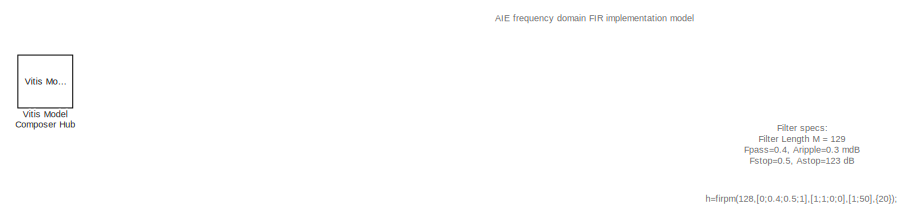
[diagram: root canvas - part 1/5, top left region]
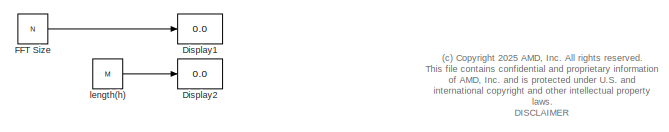
[diagram: root canvas - part 2/5, top right region]
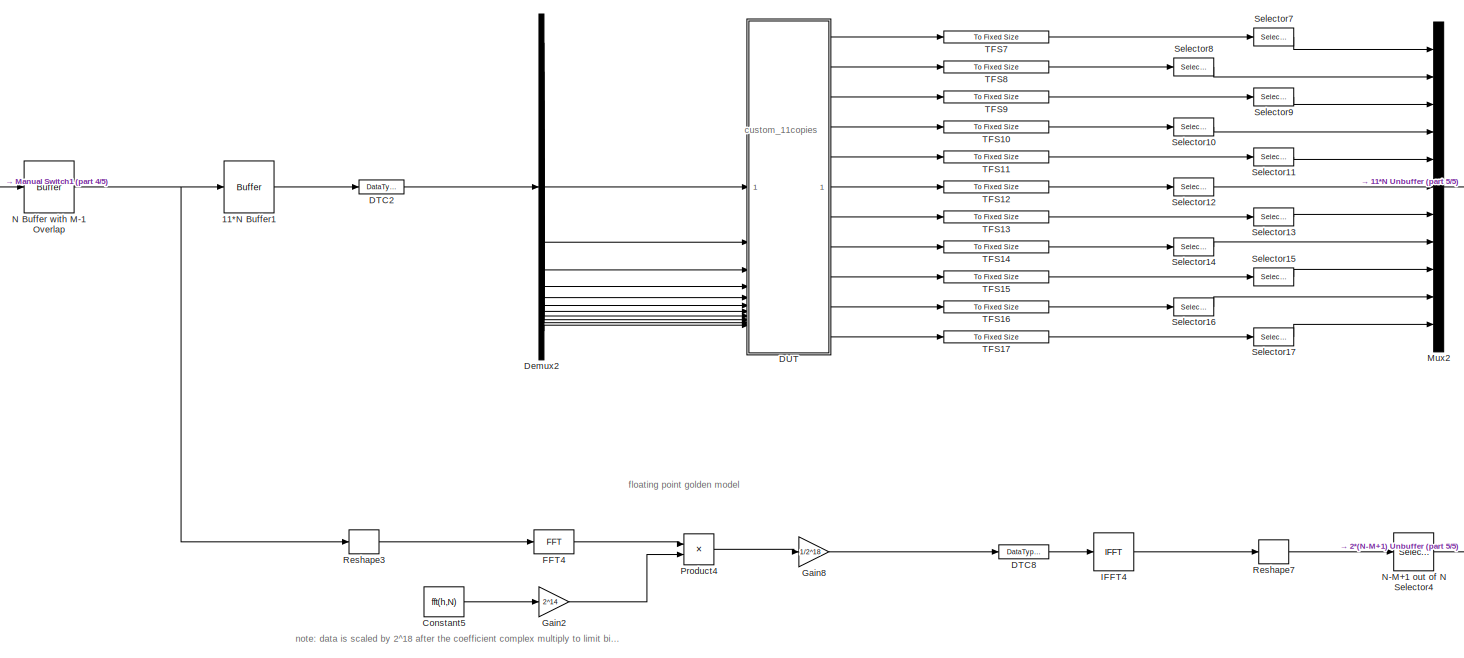
[diagram: root canvas - part 3/5, central region]
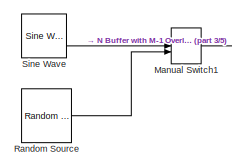
[diagram: root canvas - part 4/5, middle left region]
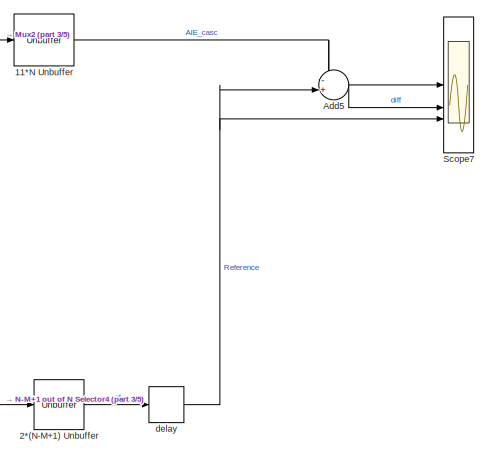
[diagram: root canvas - part 5/5, bottom right region]
MODEL slx_53d1c4419715
KIND model
CONFIG AbsTol = auto
CONFIG EnableMultiTasking = off
CONFIG FixedStep = auto
CONFIG InitFcn = N=256;\nh=firpm(128,[0;0.4;0.5;1],[1;1;0;0],[1;50],{20});\nhc=fft(h,N);\nh_quant = int16(2^14*hc/max(hc));\nM=length(h);\n
CONFIG MaxStep = auto
CONFIG MinStep = auto
CONFIG RelTol = 1e-3
CONFIG SampleTimeConstraint = Unconstrained
CONFIG SolverName = VariableStepAuto
CONFIG StartTime = 0.0
CONFIG StopTime = 65536/10
BLOCK [Buffer] 11*N Buffer1
  N = 11*N
  OutputFrames = off
BLOCK [Unbuffer] 11*N Unbuffer
BLOCK [Unbuffer] 2*(N-M+1) Unbuffer
BLOCK [Sum] Add5
  Inputs = -+|
BLOCK [Constant] Constant5
  SampleTime = 2*(N-M+1)
  Value = fft(h,N)
BLOCK [DataTypeConversion] DTC2
  OutDataTypeStr = int32
  RndMeth = Floor
  SaturateOnIntegerOverflow = off
BLOCK [DataTypeConversion] DTC8
  OutDataTypeStr = single
  RndMeth = Floor
  SaturateOnIntegerOverflow = off
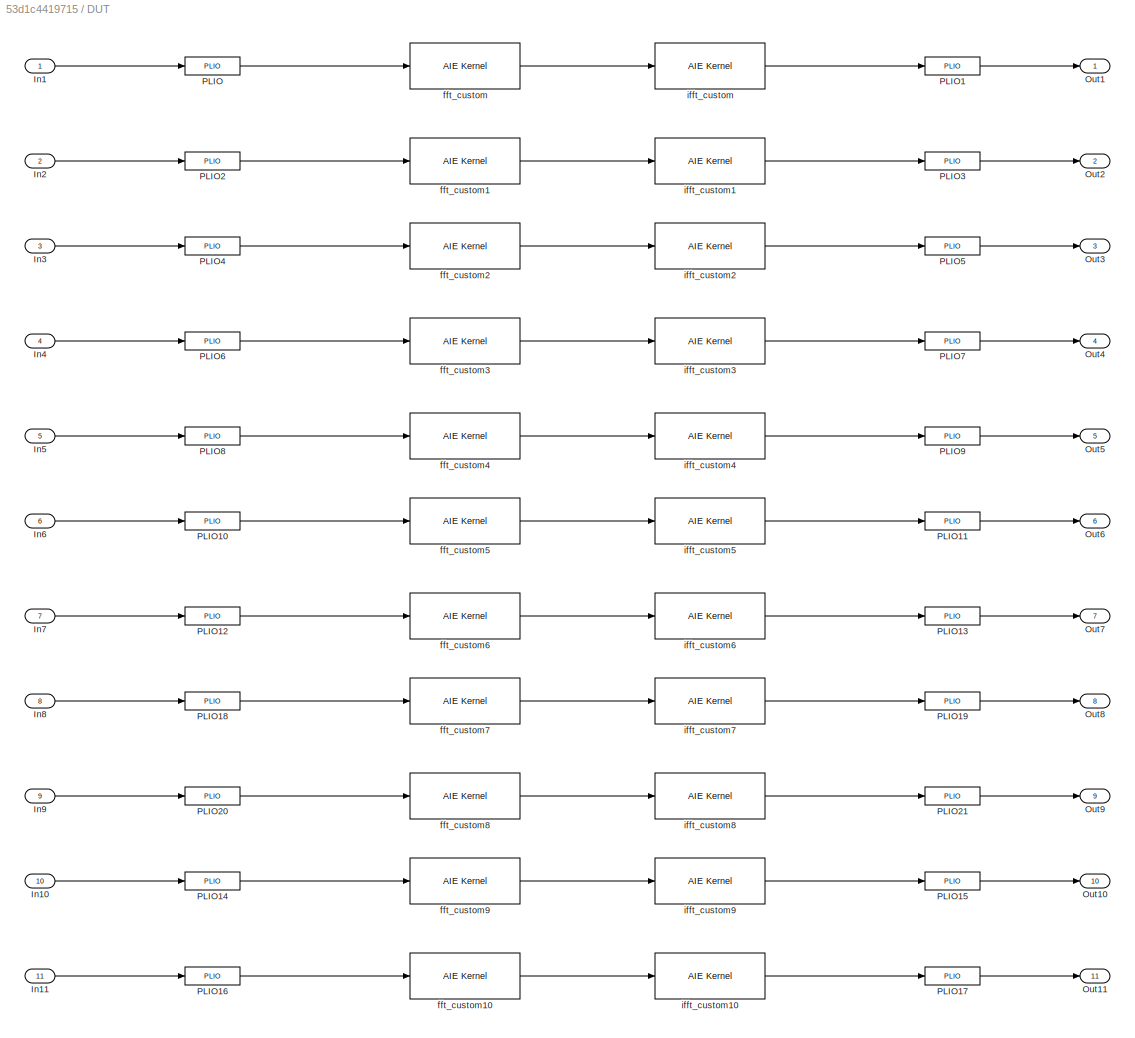
BLOCK [SubSystem] DUT
BLOCK [Inport] DUT/In1
BLOCK [Inport] DUT/In10
  Port = 10
BLOCK [Inport] DUT/In11
  Port = 11
BLOCK [Inport] DUT/In2
  Port = 2
BLOCK [Inport] DUT/In3
  Port = 3
BLOCK [Inport] DUT/In4
  Port = 4
BLOCK [Inport] DUT/In5
  Port = 5
BLOCK [Inport] DUT/In6
  Port = 6
BLOCK [Inport] DUT/In7
  Port = 7
BLOCK [Inport] DUT/In8
  Port = 8
BLOCK [Inport] DUT/In9
  Port = 9
BLOCK [Outport] DUT/Out1
BLOCK [Outport] DUT/Out10
  Port = 10
BLOCK [Outport] DUT/Out11
  Port = 11
BLOCK [Outport] DUT/Out2
  Port = 2
BLOCK [Outport] DUT/Out3
  Port = 3
BLOCK [Outport] DUT/Out4
  Port = 4
BLOCK [Outport] DUT/Out5
  Port = 5
BLOCK [Outport] DUT/Out6
  Port = 6
BLOCK [Outport] DUT/Out7
  Port = 7
BLOCK [Outport] DUT/Out8
  Port = 8
BLOCK [Outport] DUT/Out9
  Port = 9
BLOCK [Reference] DUT/PLIO  REF=aieBasic/PLIO
  SourceBlock = aieBasic/PLIO
  SourceType = PLIO
BLOCK [Reference] DUT/PLIO1  REF=aieBasic/PLIO
  SourceBlock = aieBasic/PLIO
  SourceType = PLIO
BLOCK [Reference] DUT/PLIO10  REF=aieBasic/PLIO
  SourceBlock = aieBasic/PLIO
  SourceType = PLIO
BLOCK [Reference] DUT/PLIO11  REF=aieBasic/PLIO
  SourceBlock = aieBasic/PLIO
  SourceType = PLIO
BLOCK [Reference] DUT/PLIO12  REF=aieBasic/PLIO
  SourceBlock = aieBasic/PLIO
  SourceType = PLIO
BLOCK [Reference] DUT/PLIO13  REF=aieBasic/PLIO
  SourceBlock = aieBasic/PLIO
  SourceType = PLIO
BLOCK [Reference] DUT/PLIO14  REF=aieBasic/PLIO
  SourceBlock = aieBasic/PLIO
  SourceType = PLIO
BLOCK [Reference] DUT/PLIO15  REF=aieBasic/PLIO
  SourceBlock = aieBasic/PLIO
  SourceType = PLIO
BLOCK [Reference] DUT/PLIO16  REF=aieBasic/PLIO
  SourceBlock = aieBasic/PLIO
  SourceType = PLIO
BLOCK [Reference] DUT/PLIO17  REF=aieBasic/PLIO
  SourceBlock = aieBasic/PLIO
  SourceType = PLIO
BLOCK [Reference] DUT/PLIO18  REF=aieBasic/PLIO
  SourceBlock = aieBasic/PLIO
  SourceType = PLIO
BLOCK [Reference] DUT/PLIO19  REF=aieBasic/PLIO
  SourceBlock = aieBasic/PLIO
  SourceType = PLIO
BLOCK [Reference] DUT/PLIO2  REF=aieBasic/PLIO
  SourceBlock = aieBasic/PLIO
  SourceType = PLIO
BLOCK [Reference] DUT/PLIO20  REF=aieBasic/PLIO
  SourceBlock = aieBasic/PLIO
  SourceType = PLIO
BLOCK [Reference] DUT/PLIO21  REF=aieBasic/PLIO
  SourceBlock = aieBasic/PLIO
  SourceType = PLIO
BLOCK [Reference] DUT/PLIO3  REF=aieBasic/PLIO
  SourceBlock = aieBasic/PLIO
  SourceType = PLIO
BLOCK [Reference] DUT/PLIO4  REF=aieBasic/PLIO
  SourceBlock = aieBasic/PLIO
  SourceType = PLIO
BLOCK [Reference] DUT/PLIO5  REF=aieBasic/PLIO
  SourceBlock = aieBasic/PLIO
  SourceType = PLIO
BLOCK [Reference] DUT/PLIO6  REF=aieBasic/PLIO
  SourceBlock = aieBasic/PLIO
  SourceType = PLIO
BLOCK [Reference] DUT/PLIO7  REF=aieBasic/PLIO
  SourceBlock = aieBasic/PLIO
  SourceType = PLIO
BLOCK [Reference] DUT/PLIO8  REF=aieBasic/PLIO
  SourceBlock = aieBasic/PLIO
  SourceType = PLIO
BLOCK [Reference] DUT/PLIO9  REF=aieBasic/PLIO
  SourceBlock = aieBasic/PLIO
  SourceType = PLIO
BLOCK [Reference] DUT/fft_custom  REF=aieBasic/AIE Kernel
  SourceBlock = aieBasic/AIE Kernel
  SourceType = AIE Kernel Function
BLOCK [Reference] DUT/fft_custom1  REF=aieBasic/AIE Kernel
  SourceBlock = aieBasic/AIE Kernel
  SourceType = AIE Kernel Function
BLOCK [Reference] DUT/fft_custom10  REF=aieBasic/AIE Kernel
  SourceBlock = aieBasic/AIE Kernel
  SourceType = AIE Kernel Function
BLOCK [Reference] DUT/fft_custom2  REF=aieBasic/AIE Kernel
  SourceBlock = aieBasic/AIE Kernel
  SourceType = AIE Kernel Function
BLOCK [Reference] DUT/fft_custom3  REF=aieBasic/AIE Kernel
  SourceBlock = aieBasic/AIE Kernel
  SourceType = AIE Kernel Function
BLOCK [Reference] DUT/fft_custom4  REF=aieBasic/AIE Kernel
  SourceBlock = aieBasic/AIE Kernel
  SourceType = AIE Kernel Function
BLOCK [Reference] DUT/fft_custom5  REF=aieBasic/AIE Kernel
  SourceBlock = aieBasic/AIE Kernel
  SourceType = AIE Kernel Function
BLOCK [Reference] DUT/fft_custom6  REF=aieBasic/AIE Kernel
  SourceBlock = aieBasic/AIE Kernel
  SourceType = AIE Kernel Function
BLOCK [Reference] DUT/fft_custom7  REF=aieBasic/AIE Kernel
  SourceBlock = aieBasic/AIE Kernel
  SourceType = AIE Kernel Function
BLOCK [Reference] DUT/fft_custom8  REF=aieBasic/AIE Kernel
  SourceBlock = aieBasic/AIE Kernel
  SourceType = AIE Kernel Function
BLOCK [Reference] DUT/fft_custom9  REF=aieBasic/AIE Kernel
  SourceBlock = aieBasic/AIE Kernel
  SourceType = AIE Kernel Function
BLOCK [Reference] DUT/ifft_custom  REF=aieBasic/AIE Kernel
  SourceBlock = aieBasic/AIE Kernel
  SourceType = AIE Kernel Function
BLOCK [Reference] DUT/ifft_custom1  REF=aieBasic/AIE Kernel
  SourceBlock = aieBasic/AIE Kernel
  SourceType = AIE Kernel Function
BLOCK [Reference] DUT/ifft_custom10  REF=aieBasic/AIE Kernel
  SourceBlock = aieBasic/AIE Kernel
  SourceType = AIE Kernel Function
BLOCK [Reference] DUT/ifft_custom2  REF=aieBasic/AIE Kernel
  SourceBlock = aieBasic/AIE Kernel
  SourceType = AIE Kernel Function
BLOCK [Reference] DUT/ifft_custom3  REF=aieBasic/AIE Kernel
  SourceBlock = aieBasic/AIE Kernel
  SourceType = AIE Kernel Function
BLOCK [Reference] DUT/ifft_custom4  REF=aieBasic/AIE Kernel
  SourceBlock = aieBasic/AIE Kernel
  SourceType = AIE Kernel Function
BLOCK [Reference] DUT/ifft_custom5  REF=aieBasic/AIE Kernel
  SourceBlock = aieBasic/AIE Kernel
  SourceType = AIE Kernel Function
BLOCK [Reference] DUT/ifft_custom6  REF=aieBasic/AIE Kernel
  SourceBlock = aieBasic/AIE Kernel
  SourceType = AIE Kernel Function
BLOCK [Reference] DUT/ifft_custom7  REF=aieBasic/AIE Kernel
  SourceBlock = aieBasic/AIE Kernel
  SourceType = AIE Kernel Function
BLOCK [Reference] DUT/ifft_custom8  REF=aieBasic/AIE Kernel
  SourceBlock = aieBasic/AIE Kernel
  SourceType = AIE Kernel Function
BLOCK [Reference] DUT/ifft_custom9  REF=aieBasic/AIE Kernel
  SourceBlock = aieBasic/AIE Kernel
  SourceType = AIE Kernel Function
BLOCK [Demux] Demux2
  Outputs = 11
BLOCK [Display] Display1
  Decimation = 1
BLOCK [Display] Display2
  Decimation = 1
BLOCK [Constant] FFT Size
  Value = N
BLOCK [Reference] FFT4  REF=dspxfrm3/FFT
  SourceBlock = dspxfrm3/FFT
  SourceType = FFT
BLOCK [Gain] Gain2
  Gain = 2^14
  OutDataTypeStr = single
BLOCK [Gain] Gain8
  Gain = 1/2^18
  OutDataTypeStr = single
BLOCK [Reference] IFFT4  REF=dspxfrm3/IFFT
  SourceBlock = dspxfrm3/IFFT
  SourceType = IFFT
BLOCK [ManualSwitch] Manual Switch1
BLOCK [Mux] Mux2
  DisplayOption = bar
  Inputs = 11
BLOCK [Buffer] N Buffer with M-1 Overlap
  N = N
  OutputFrames = off
  V = M-1
BLOCK [Selector] N-M+1 out of N Selector4
  IndexOptions = Index vector (dialog)
  Indices = [length(h):N]
  InputPortWidth = N
  NameLocation = left
  OutputSizes = 1
BLOCK [Product] Product4
BLOCK [Reference] Random Source  REF=dspsrcs4/Random
Source
  SourceBlock = dspsrcs4/Random\nSource
  SourceType = dsp.simulink.RandomSource
BLOCK [Reshape] Reshape3
BLOCK [Reshape] Reshape7
BLOCK [Scope] Scope7
  Floating = off
  NumInputPorts = 3
  ScopeSpecificationString = Simulink.scopes.TimeScopeBlockCfg('CurrentConfiguration', extmgr.ConfigurationSet(extmgr.Configuration('Core','General UI',true,'DisplayFullSourceName',false,'ShowMainToolbar',true,'FigureColor',[0.129411764705882 0.129411764705882 0.129411764705882]),extmgr.Configuration('Sources','WiredSimulink',true,'DataLogging',false,'DataLoggingVariableName','ScopeData1','DataLoggingLimitDataPoints',false,'D...<+4640ch>
BLOCK [Selector] Selector10
  IndexOptions = Index vector (dialog)
  Indices = [length(h):N]
  InputPortWidth = N
  OutputSizes = 1
BLOCK [Selector] Selector11
  IndexOptions = Index vector (dialog)
  Indices = [length(h):N]
  InputPortWidth = N
  OutputSizes = 1
BLOCK [Selector] Selector12
  IndexOptions = Index vector (dialog)
  Indices = [length(h):N]
  InputPortWidth = N
  OutputSizes = 1
BLOCK [Selector] Selector13
  IndexOptions = Index vector (dialog)
  Indices = [length(h):N]
  InputPortWidth = N
  OutputSizes = 1
BLOCK [Selector] Selector14
  IndexOptions = Index vector (dialog)
  Indices = [length(h):N]
  InputPortWidth = N
  OutputSizes = 1
BLOCK [Selector] Selector15
  IndexOptions = Index vector (dialog)
  Indices = [length(h):N]
  InputPortWidth = N
  OutputSizes = 1
BLOCK [Selector] Selector16
  IndexOptions = Index vector (dialog)
  Indices = [length(h):N]
  InputPortWidth = N
  OutputSizes = 1
BLOCK [Selector] Selector17
  IndexOptions = Index vector (dialog)
  Indices = [length(h):N]
  InputPortWidth = N
  OutputSizes = 1
BLOCK [Selector] Selector7
  IndexOptions = Index vector (dialog)
  Indices = [length(h):N]
  InputPortWidth = N
  OutputSizes = 1
BLOCK [Selector] Selector8
  IndexOptions = Index vector (dialog)
  Indices = [length(h):N]
  InputPortWidth = N
  OutputSizes = 1
BLOCK [Selector] Selector9
  IndexOptions = Index vector (dialog)
  Indices = [length(h):N]
  InputPortWidth = N
  OutputSizes = 1
BLOCK [Reference] Sine Wave  REF=dspsrcs4/Sine Wave
  SourceBlock = dspsrcs4/Sine Wave
  SourceType = Sine Wave
BLOCK [Reference] TFS10  REF=aieUtilities/To Fixed Size
  SourceBlock = aieUtilities/To Fixed Size
  SourceType = To Fixed Size
BLOCK [Reference] TFS11  REF=aieUtilities/To Fixed Size
  SourceBlock = aieUtilities/To Fixed Size
  SourceType = To Fixed Size
BLOCK [Reference] TFS12  REF=aieUtilities/To Fixed Size
  SourceBlock = aieUtilities/To Fixed Size
  SourceType = To Fixed Size
BLOCK [Reference] TFS13  REF=aieUtilities/To Fixed Size
  SourceBlock = aieUtilities/To Fixed Size
  SourceType = To Fixed Size
BLOCK [Reference] TFS14  REF=aieUtilities/To Fixed Size
  SourceBlock = aieUtilities/To Fixed Size
  SourceType = To Fixed Size
BLOCK [Reference] TFS15  REF=aieUtilities/To Fixed Size
  SourceBlock = aieUtilities/To Fixed Size
  SourceType = To Fixed Size
BLOCK [Reference] TFS16  REF=aieUtilities/To Fixed Size
  SourceBlock = aieUtilities/To Fixed Size
  SourceType = To Fixed Size
BLOCK [Reference] TFS17  REF=aieUtilities/To Fixed Size
  SourceBlock = aieUtilities/To Fixed Size
  SourceType = To Fixed Size
BLOCK [Reference] TFS7  REF=aieUtilities/To Fixed Size
  SourceBlock = aieUtilities/To Fixed Size
  SourceType = To Fixed Size
BLOCK [Reference] TFS8  REF=aieUtilities/To Fixed Size
  SourceBlock = aieUtilities/To Fixed Size
  SourceType = To Fixed Size
BLOCK [Reference] TFS9  REF=aieUtilities/To Fixed Size
  SourceBlock = aieUtilities/To Fixed Size
  SourceType = To Fixed Size
BLOCK [Reference] Vitis Model Composer Hub  REF=vmcUtilities/Vitis Model Composer Hub
  SourceBlock = vmcUtilities/Vitis Model Composer Hub
  SourceType = VMC Hub
  Tag = genX
  UserDataPersistent = on
BLOCK [Delay] delay
  DelayLength = 691*2+26
  InputPortMap = u0
BLOCK [Constant] length(h)
  Value = M
ANNOTATION (root): (c) <copyright redacted>
ANNOTATION (root): Filter specs: Filter Length M = 129 Fpass=0.4, Aripple=0.3 mdB Fstop=0.5, Astop=123 dB
ANNOTATION (root): floating point golden model
ANNOTATION (root): h=firpm(128,[0;0.4;0.5;1],[1;1;0;0],[1;50],{20});
ANNOTATION (root): note: data is scaled by 2^18 after the coefficient complex multiply to limit bit growth
ANNOTATION (root): AIE frequency domain FIR implementation model
ANNOTATION (root): custom_11copies
LINE 11*N Buffer1:1 -> DTC2:1
NET 11*N Unbuffer:1 -> Add5:1, Scope7:1
LINE 2*(N-M+1) Unbuffer:1 -> delay:1
LINE Add5:1 -> Scope7:2
LINE Constant5:1 -> Gain2:1
LINE DTC2:1 -> Demux2:1
LINE DTC8:1 -> IFFT4:1
LINE DUT/In10:1 -> DUT/PLIO14:1
LINE DUT/In11:1 -> DUT/PLIO16:1
LINE DUT/In1:1 -> DUT/PLIO:1
LINE DUT/In2:1 -> DUT/PLIO2:1
LINE DUT/In3:1 -> DUT/PLIO4:1
LINE DUT/In4:1 -> DUT/PLIO6:1
LINE DUT/In5:1 -> DUT/PLIO8:1
LINE DUT/In6:1 -> DUT/PLIO10:1
LINE DUT/In7:1 -> DUT/PLIO12:1
LINE DUT/In8:1 -> DUT/PLIO18:1
LINE DUT/In9:1 -> DUT/PLIO20:1
LINE DUT/PLIO10:1 -> DUT/fft_custom5:1
LINE DUT/PLIO11:1 -> DUT/Out6:1
LINE DUT/PLIO12:1 -> DUT/fft_custom6:1
LINE DUT/PLIO13:1 -> DUT/Out7:1
LINE DUT/PLIO14:1 -> DUT/fft_custom9:1
LINE DUT/PLIO15:1 -> DUT/Out10:1
LINE DUT/PLIO16:1 -> DUT/fft_custom10:1
LINE DUT/PLIO17:1 -> DUT/Out11:1
LINE DUT/PLIO18:1 -> DUT/fft_custom7:1
LINE DUT/PLIO19:1 -> DUT/Out8:1
LINE DUT/PLIO1:1 -> DUT/Out1:1
LINE DUT/PLIO20:1 -> DUT/fft_custom8:1
LINE DUT/PLIO21:1 -> DUT/Out9:1
LINE DUT/PLIO2:1 -> DUT/fft_custom1:1
LINE DUT/PLIO3:1 -> DUT/Out2:1
LINE DUT/PLIO4:1 -> DUT/fft_custom2:1
LINE DUT/PLIO5:1 -> DUT/Out3:1
LINE DUT/PLIO6:1 -> DUT/fft_custom3:1
LINE DUT/PLIO7:1 -> DUT/Out4:1
LINE DUT/PLIO8:1 -> DUT/fft_custom4:1
LINE DUT/PLIO9:1 -> DUT/Out5:1
LINE DUT/PLIO:1 -> DUT/fft_custom:1
LINE DUT/fft_custom10:1 -> DUT/ifft_custom10:1
LINE DUT/fft_custom1:1 -> DUT/ifft_custom1:1
LINE DUT/fft_custom2:1 -> DUT/ifft_custom2:1
LINE DUT/fft_custom3:1 -> DUT/ifft_custom3:1
LINE DUT/fft_custom4:1 -> DUT/ifft_custom4:1
LINE DUT/fft_custom5:1 -> DUT/ifft_custom5:1
LINE DUT/fft_custom6:1 -> DUT/ifft_custom6:1
LINE DUT/fft_custom7:1 -> DUT/ifft_custom7:1
LINE DUT/fft_custom8:1 -> DUT/ifft_custom8:1
LINE DUT/fft_custom9:1 -> DUT/ifft_custom9:1
LINE DUT/fft_custom:1 -> DUT/ifft_custom:1
LINE DUT/ifft_custom10:1 -> DUT/PLIO17:1
LINE DUT/ifft_custom1:1 -> DUT/PLIO3:1
LINE DUT/ifft_custom2:1 -> DUT/PLIO5:1
LINE DUT/ifft_custom3:1 -> DUT/PLIO7:1
LINE DUT/ifft_custom4:1 -> DUT/PLIO9:1
LINE DUT/ifft_custom5:1 -> DUT/PLIO11:1
LINE DUT/ifft_custom6:1 -> DUT/PLIO13:1
LINE DUT/ifft_custom7:1 -> DUT/PLIO19:1
LINE DUT/ifft_custom8:1 -> DUT/PLIO21:1
LINE DUT/ifft_custom9:1 -> DUT/PLIO15:1
LINE DUT/ifft_custom:1 -> DUT/PLIO1:1
LINE DUT:1 -> TFS7:1
LINE DUT:10 -> TFS16:1
LINE DUT:11 -> TFS17:1
LINE DUT:2 -> TFS8:1
LINE DUT:3 -> TFS9:1
LINE DUT:4 -> TFS10:1
LINE DUT:5 -> TFS11:1
LINE DUT:6 -> TFS12:1
LINE DUT:7 -> TFS13:1
LINE DUT:8 -> TFS14:1
LINE DUT:9 -> TFS15:1
LINE Demux2:1 -> DUT:1
LINE Demux2:10 -> DUT:10
LINE Demux2:11 -> DUT:11
LINE Demux2:2 -> DUT:2
LINE Demux2:3 -> DUT:3
LINE Demux2:4 -> DUT:4
LINE Demux2:5 -> DUT:5
LINE Demux2:6 -> DUT:6
LINE Demux2:7 -> DUT:7
LINE Demux2:8 -> DUT:8
LINE Demux2:9 -> DUT:9
LINE FFT Size:1 -> Display1:1
LINE FFT4:1 -> Product4:1
LINE Gain2:1 -> Product4:2
LINE Gain8:1 -> DTC8:1
LINE IFFT4:1 -> Reshape7:1
LINE Manual Switch1:1 -> N Buffer with M-1 Overlap:1
LINE Mux2:1 -> 11*N Unbuffer:1
NET N Buffer with M-1 Overlap:1 -> 11*N Buffer1:1, Reshape3:1
LINE N-M+1 out of N Selector4:1 -> 2*(N-M+1) Unbuffer:1
LINE Product4:1 -> Gain8:1
LINE Random Source:1 -> Manual Switch1:2
LINE Reshape3:1 -> FFT4:1
LINE Reshape7:1 -> N-M+1 out of N Selector4:1
LINE Selector10:1 -> Mux2:4
LINE Selector11:1 -> Mux2:5
LINE Selector12:1 -> Mux2:6
LINE Selector13:1 -> Mux2:7
LINE Selector14:1 -> Mux2:8
LINE Selector15:1 -> Mux2:9
LINE Selector16:1 -> Mux2:10
LINE Selector17:1 -> Mux2:11
LINE Selector7:1 -> Mux2:1
LINE Selector8:1 -> Mux2:2
LINE Selector9:1 -> Mux2:3
LINE Sine Wave:1 -> Manual Switch1:1
LINE TFS10:1 -> Selector10:1
LINE TFS11:1 -> Selector11:1
LINE TFS12:1 -> Selector12:1
LINE TFS13:1 -> Selector13:1
LINE TFS14:1 -> Selector14:1
LINE TFS15:1 -> Selector15:1
LINE TFS16:1 -> Selector16:1
LINE TFS17:1 -> Selector17:1
LINE TFS7:1 -> Selector7:1
LINE TFS8:1 -> Selector8:1
LINE TFS9:1 -> Selector9:1
NET delay:1 -> Add5:2, Scope7:3
LINE length(h):1 -> Display2:1
note: NET lines group one-source signal fan-out (src -> all destinations, sorted); 1:1 wires keep LINE
